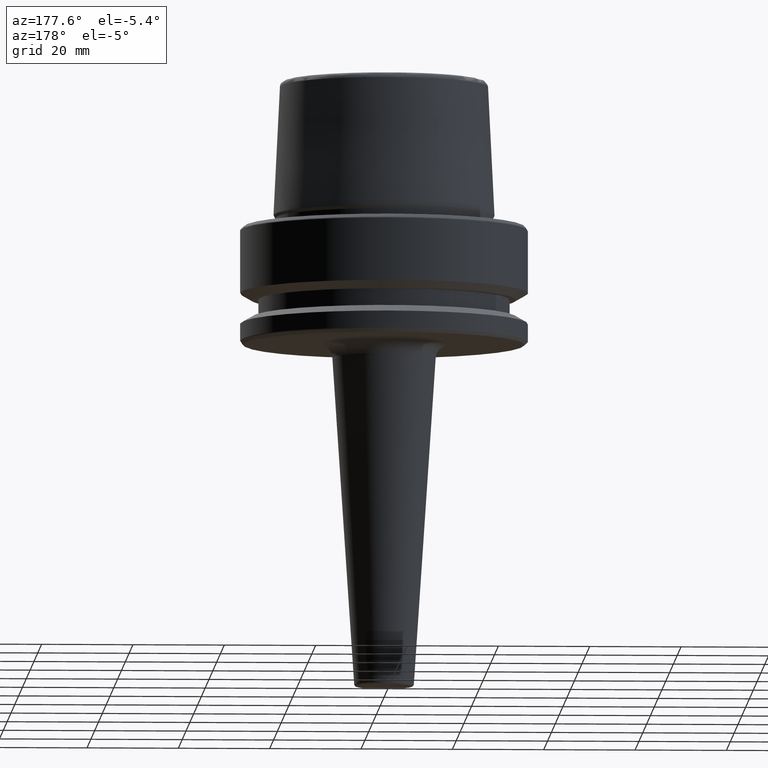
[diagram: clean part render]
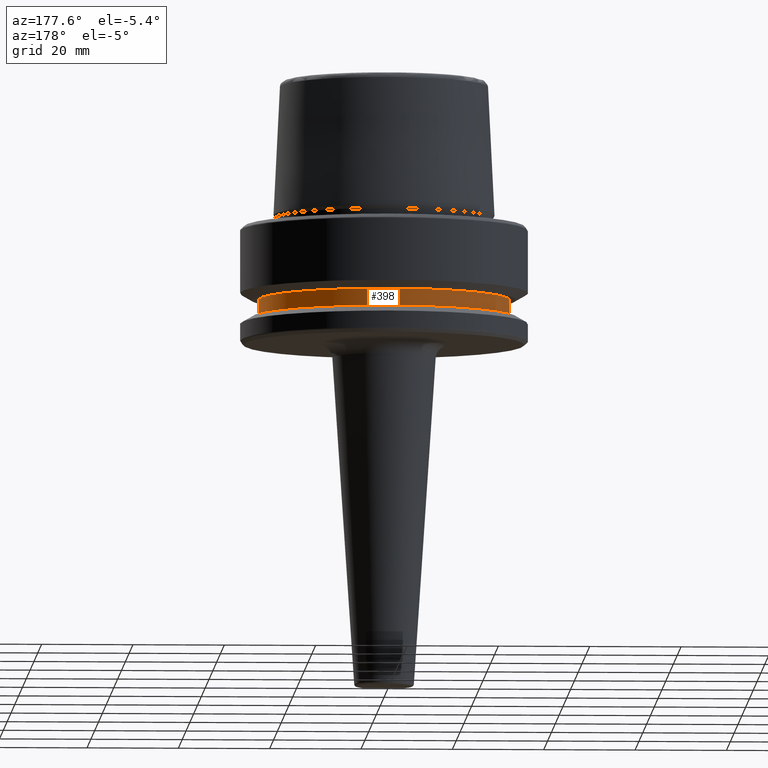
[diagram: same view with one face highlighted and labeled with its STEP entity id]
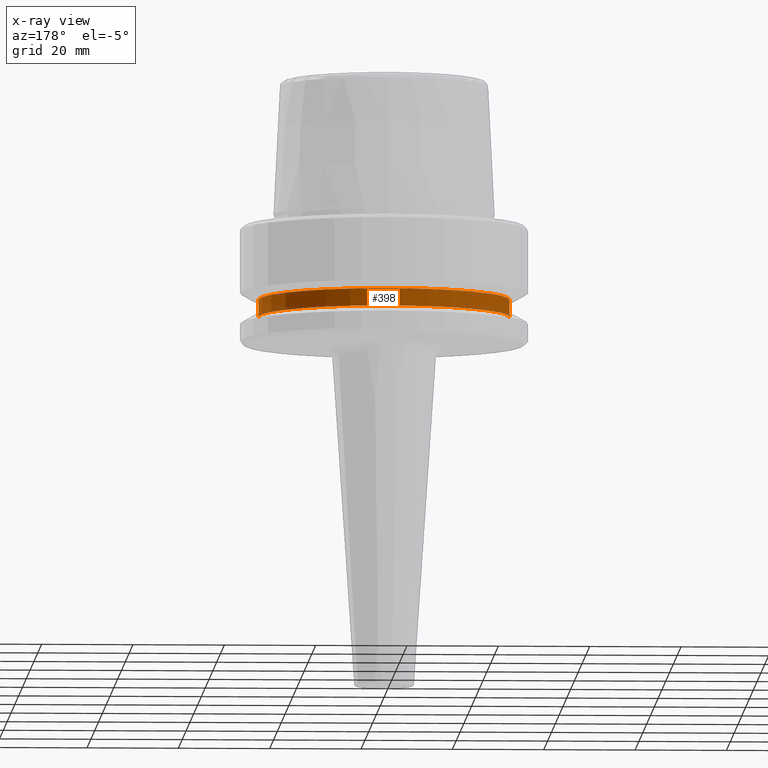
[diagram: x-ray of the same camera — body ghosted, the highlighted face saturated]
A machine part, auxiliary view. The second image highlights one B-rep face of the part: STEP entity #398.
The next image is the same camera in x-ray: the body ghosted, the highlighted face saturated — about 0% of this face is hidden behind the body in this view.
In plain terms, the highlighted cylindrical surface (partial cylindrical patch) has radius 27.5 mm, axis along (-0, -0, 1).
Its self-contained STEP definition (entity closure, byte-faithful):
#34 = LINE ( 'NONE', #128, #790 ) ;
#49 = AXIS2_PLACEMENT_3D ( 'NONE', #755, #678, #1238 ) ;
#72 = CARTESIAN_POINT ( 'NONE',  ( 0.0000000000000000000, 0.0000000000000000000, -16.10000000000001600 ) ) ;
#76 = LINE ( 'NONE', #1214, #1256 ) ;
#128 = CARTESIAN_POINT ( 'NONE',  ( 27.49999999999999600, 0.0000000000000000000, 78.96908074195309300 ) ) ;
#130 = AXIS2_PLACEMENT_3D ( 'NONE', #283, #675, #940 ) ;
#172 = EDGE_CURVE ( 'NONE', #954, #1075, #34, .T. ) ;
#184 = DIRECTION ( 'NONE',  ( -0.0000000000000000000, -0.0000000000000000000, 1.000000000000000000 ) ) ;
#262 = CARTESIAN_POINT ( 'NONE',  ( 27.49999999999999600, 0.0000000000000000000, -19.90000000000001600 ) ) ;
#283 = CARTESIAN_POINT ( 'NONE',  ( 0.0000000000000000000, 0.0000000000000000000, -19.90000000000001600 ) ) ;
#297 = ORIENTED_EDGE ( 'NONE', *, *, #815, .T. ) ;
#333 = CIRCLE ( 'NONE', #1175, 27.49999999999999600 ) ;
#386 = VERTEX_POINT ( 'NONE', #946 ) ;
#398 = ADVANCED_FACE ( 'NONE', ( #475 ), #826, .T. ) ;
#415 = EDGE_CURVE ( 'NONE', #1075, #386, #333, .T. ) ;
#418 = DIRECTION ( 'NONE',  ( -0.0000000000000000000, -0.0000000000000000000, 1.000000000000000000 ) ) ;
#475 = FACE_OUTER_BOUND ( 'NONE', #848, .T. ) ;
#538 = ORIENTED_EDGE ( 'NONE', *, *, #172, .F. ) ;
#671 = CIRCLE ( 'NONE', #130, 27.49999999999999600 ) ;
#675 = DIRECTION ( 'NONE',  ( -0.0000000000000000000, -0.0000000000000000000, 1.000000000000000000 ) ) ;
#678 = DIRECTION ( 'NONE',  ( -0.0000000000000000000, -0.0000000000000000000, 1.000000000000000000 ) ) ;
#755 = CARTESIAN_POINT ( 'NONE',  ( 0.0000000000000000000, 0.0000000000000000000, 78.96908074195309300 ) ) ;
#790 = VECTOR ( 'NONE', #418, 1000.000000000000000 ) ;
#815 = EDGE_CURVE ( 'NONE', #954, #905, #671, .T. ) ;
#826 = CYLINDRICAL_SURFACE ( 'NONE', #49, 27.49999999999999600 ) ;
#848 = EDGE_LOOP ( 'NONE', ( #297, #1180, #956, #538 ) ) ;
#858 = DIRECTION ( 'NONE',  ( -0.0000000000000000000, -0.0000000000000000000, 1.000000000000000000 ) ) ;
#905 = VERTEX_POINT ( 'NONE', #1143 ) ;
#940 = DIRECTION ( 'NONE',  ( 1.000000000000000000, 0.0000000000000000000, 0.0000000000000000000 ) ) ;
#943 = CARTESIAN_POINT ( 'NONE',  ( 27.49999999999999600, 0.0000000000000000000, -16.10000000000001600 ) ) ;
#946 = CARTESIAN_POINT ( 'NONE',  ( -27.49999999999999600, 3.367778697655220900E-015, -16.10000000000001600 ) ) ;
#949 = DIRECTION ( 'NONE',  ( 1.000000000000000000, 0.0000000000000000000, 0.0000000000000000000 ) ) ;
#954 = VERTEX_POINT ( 'NONE', #262 ) ;
#956 = ORIENTED_EDGE ( 'NONE', *, *, #415, .F. ) ;
#1072 = EDGE_CURVE ( 'NONE', #905, #386, #76, .T. ) ;
#1075 = VERTEX_POINT ( 'NONE', #943 ) ;
#1143 = CARTESIAN_POINT ( 'NONE',  ( -27.49999999999999600, 3.367778697655220900E-015, -19.90000000000001600 ) ) ;
#1175 = AXIS2_PLACEMENT_3D ( 'NONE', #72, #184, #949 ) ;
#1180 = ORIENTED_EDGE ( 'NONE', *, *, #1072, .T. ) ;
#1214 = CARTESIAN_POINT ( 'NONE',  ( -27.49999999999999600, 3.367778697655220900E-015, 78.96908074195309300 ) ) ;
#1238 = DIRECTION ( 'NONE',  ( 1.000000000000000000, 0.0000000000000000000, 0.0000000000000000000 ) ) ;
#1256 = VECTOR ( 'NONE', #858, 1000.000000000000000 ) ;